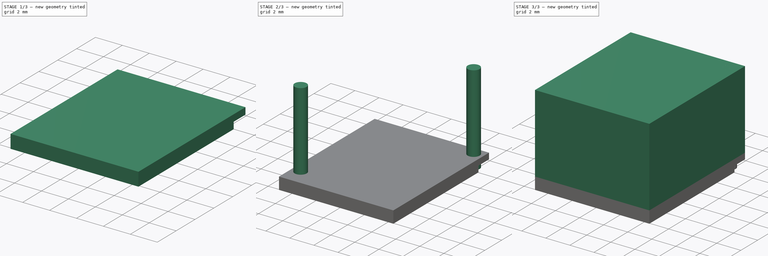
[diagram: build sequence overview — one tinted view per stage of 3, left to right]
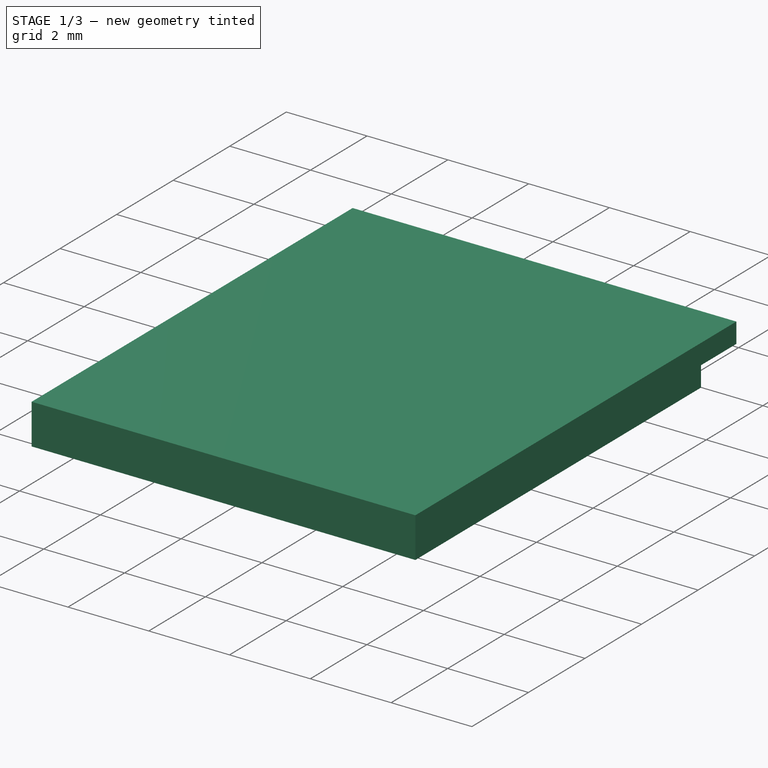
[diagram: stage 1 of 3 — iso view after this stage's code; geometry added in this stage tinted green]
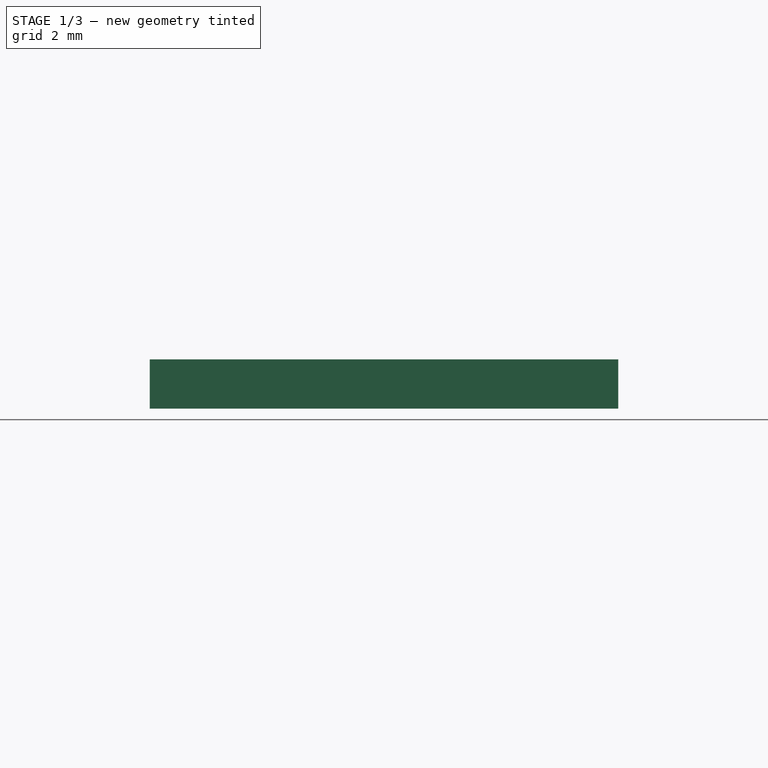
[diagram: stage 1 of 3 — front view after this stage's code; geometry added in this stage tinted green]
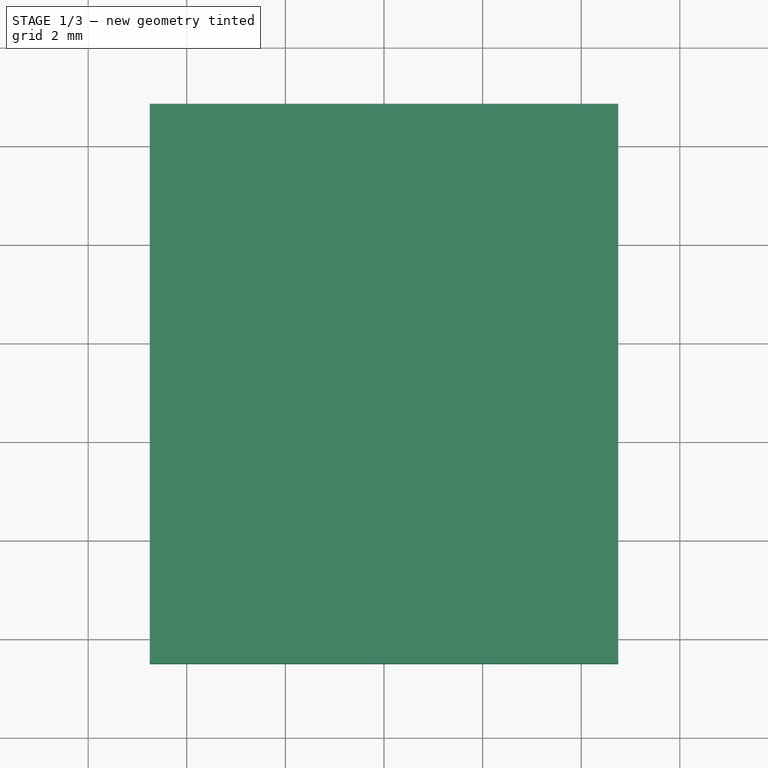
[diagram: stage 1 of 3 — top view after this stage's code; geometry added in this stage tinted green]
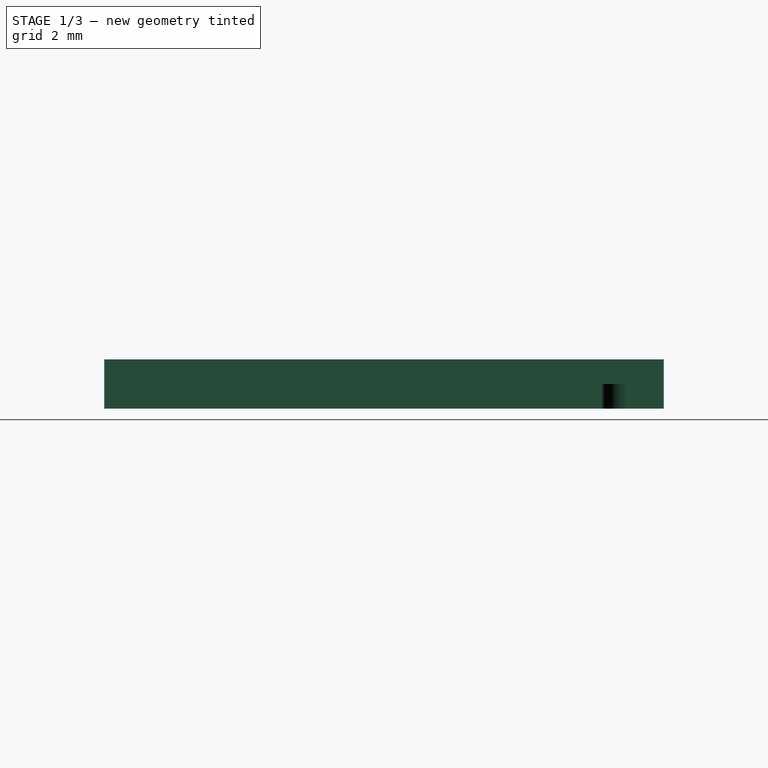
[diagram: stage 1 of 3 — right view after this stage's code; geometry added in this stage tinted green]
FCSTD DOCUMENT  (FreeCAD 0.19R16699 (Git))
Label: RD901F Datums
License: All rights reserved
LicenseURL: http://en.wikipedia.org/wiki/All_rights_reserved
objects: Sketcher::SketchObject×6, PartDesign::Plane×5, PartDesign::Pad×5, PartDesign::Body×5, PartDesign::Pocket×1, App::Part×1
note: 28 computed .brp shape members not serialized (recipe doc carries the construction recipe); baked Part::Feature solids carry a one-line shape summary decoded from their .brp

FEATURE [PartDesign::Plane] DatumPlane  label="BodyBottomDatumPlane"
  Length = 24
  MapMode = 5
  ResizeMode = 0
  Support = -> [XY_Plane001]
  Width = 24
FEATURE [Sketcher::SketchObject] Sketch  label="BodyBottomSketch"
  MapMode = 5
  Support = -> [DatumPlane]
  sketch-geometry (5):
    g0: LineSegment StartX=-4.75 StartY=4.85 StartZ=0 EndX=4.75 EndY=4.85 EndZ=0
    g1: LineSegment StartX=4.75 StartY=4.85 StartZ=0 EndX=4.75 EndY=-6.5 EndZ=0
    g2: LineSegment StartX=4.75 StartY=-6.5 StartZ=0 EndX=-4.75 EndY=-6.5 EndZ=0
    g3: LineSegment StartX=-4.75 StartY=-6.5 StartZ=0 EndX=-4.75 EndY=4.85 EndZ=0
    g4: LineSegment [constr] StartX=-8.64831 StartY=-5.45949 StartZ=0 EndX=-8.64831 EndY=-4.45949 EndZ=0
  constraints (13):
    c: Coincident(g0,g1)
    c: Coincident(g1,g2)
    c: Coincident(g2,g3)
    c: Coincident(g3,g0)
    c: Horizontal(g2)
    c: Vertical(g1)
    c: Vertical(g3)
    c: Symmetric(g0,g0,g-2)
    c: DistanceY(g-1,g0) = 4.85  'bodysizey1'
    c: DistanceY(g1,g-1) = 6.5  'bodysizey2'
    c: DistanceX(g0,g0) = 9.5  'bodysizex'
    c: Vertical(g4)
    c: DistanceY(g4,g4) = 1  'bodysizez1'
FEATURE [PartDesign::Pad] Pad  label="BodyBottomPad"
  Length = 1
  Length2 = 100
  Profile = -> Sketch
  Type = 0
  expr: Length = BodyBottomSketch.Constraints.bodysizez1
FEATURE [PartDesign::Body] Body004  label="Rivet2"
  Group = -> [DatumPlane004,Sketch004,Pad004]
  Origin = -> Origin005
  Tip = -> Pad004
FEATURE [Sketcher::SketchObject] Sketch005  label="Rivet1PocketSketch"
  MapMode = 5
  Support = -> [DatumPlane]
  expr: Constraints.y = 2 * Rivet1Sketch.Constraints.rivetradius + Rivet1PocketSketch.Constraints.rivettoedgey
  expr: Constraints[6] = BodyBottomSketch.Constraints.bodysizex / 2
  expr: Constraints[11] = 2 * Rivet1Sketch.Constraints.rivetradius + Rivet1PocketSketch.Constraints.rivettoedgex
  expr: Constraints[7] = BodyBottomSketch.Constraints.bodysizey1
  sketch-geometry (7):
    g0: LineSegment StartX=4 StartY=3.6 StartZ=0 EndX=4.75 EndY=3.6 EndZ=0
    g1: LineSegment StartX=4.75 StartY=3.6 StartZ=0 EndX=4.75 EndY=4.85 EndZ=0
    g2: LineSegment StartX=4.75 StartY=4.85 StartZ=0 EndX=3.5 EndY=4.85 EndZ=0
    g3: LineSegment StartX=3.5 StartY=4.85 StartZ=0 EndX=3.5 EndY=4.1 EndZ=0
    g4: ArcOfCircle CenterX=4 CenterY=4.1 CenterZ=0 NormalX=0 NormalY=0 NormalZ=1 AngleXU=0 Radius=0.5 StartAngle=3.14159 EndAngle=4.71239
    g5: LineSegment [constr] StartX=12.5082 StartY=6.55644 StartZ=0 EndX=12.7582 EndY=6.55644 EndZ=0
    g6: LineSegment [constr] StartX=12.3584 StartY=4.54892 StartZ=0 EndX=12.3584 EndY=4.29892 EndZ=0
  constraints (18):
    c: Coincident(g1,g2)
    c: Coincident(g2,g3)
    c: Horizontal(g0)
    c: Horizontal(g2)
    c: Vertical(g1)
    c: Vertical(g3)
    c: DistanceX(g-1,g1) = 4.75
    c: DistanceY(g-1,g1) = 4.85
    c: Tangent(g0,g4) = -1.5708
    c: Tangent(g3,g4) = -1.5708
    c: DistanceY(g0,g4) = 0.5
    c: DistanceX(g2,g1) = 1.25
    c: DistanceY(g0,g1) = 1.25  'y'
    c: Coincident(g0,g1)
    c: Horizontal(g5)
    c: Vertical(g6)
    c: DistanceY(g6,g6) = 0.25  'rivettoedgey'
    c: DistanceX(g5,g5) = 0.25  'rivettoedgex'
FEATURE [PartDesign::Pocket] Pocket  label="Rivet1Pocket"
  BaseFeature = -> Pad
  Length = 0.5
  Length2 = 100
  Profile = -> Sketch005
  Reversed = true
  Type = 0
FEATURE [PartDesign::Body] Body  label="BodyBottom"
  Group = -> [DatumPlane,Sketch,Pad,Sketch005,Pocket]
  Origin = -> Origin001
  Tip = -> Pocket
FEATURE [App::Part] Part  label="RD901F-20"
  Group = -> [Body,Body001,Body002,Body003,Body004]
  Origin = -> Origin
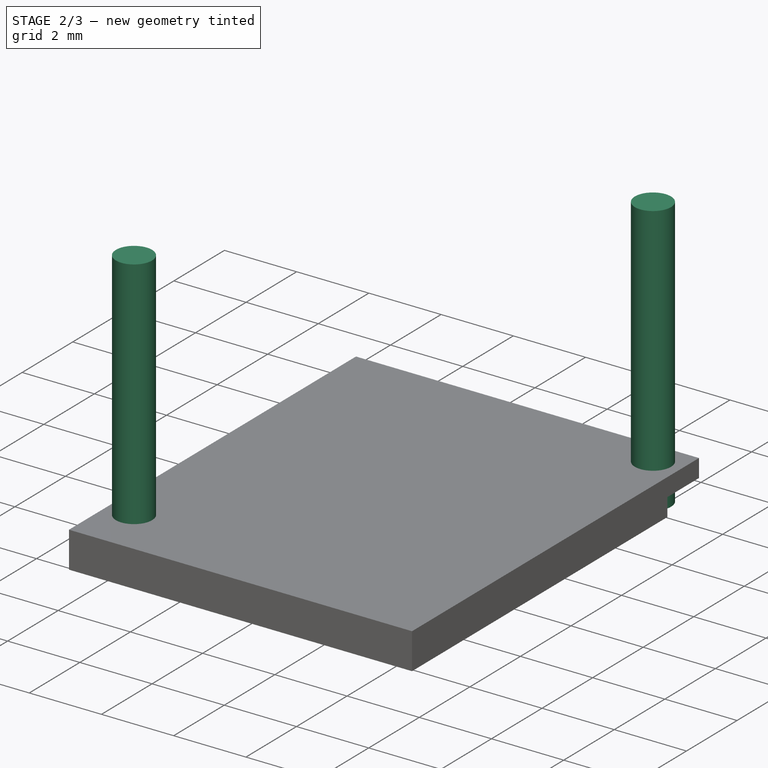
[diagram: stage 2 of 3 — iso view after this stage's code; geometry added in this stage tinted green]
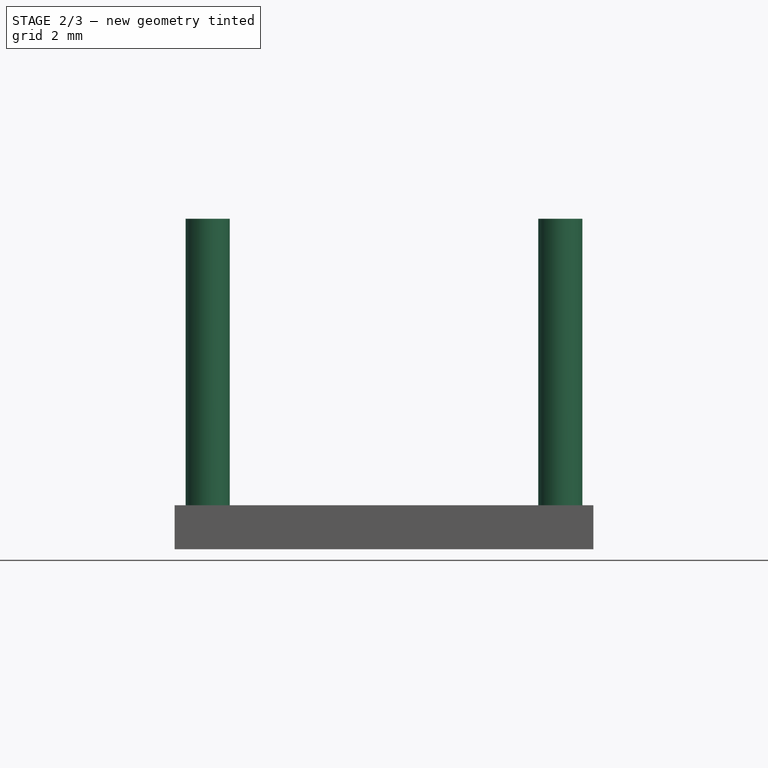
[diagram: stage 2 of 3 — front view after this stage's code; geometry added in this stage tinted green]
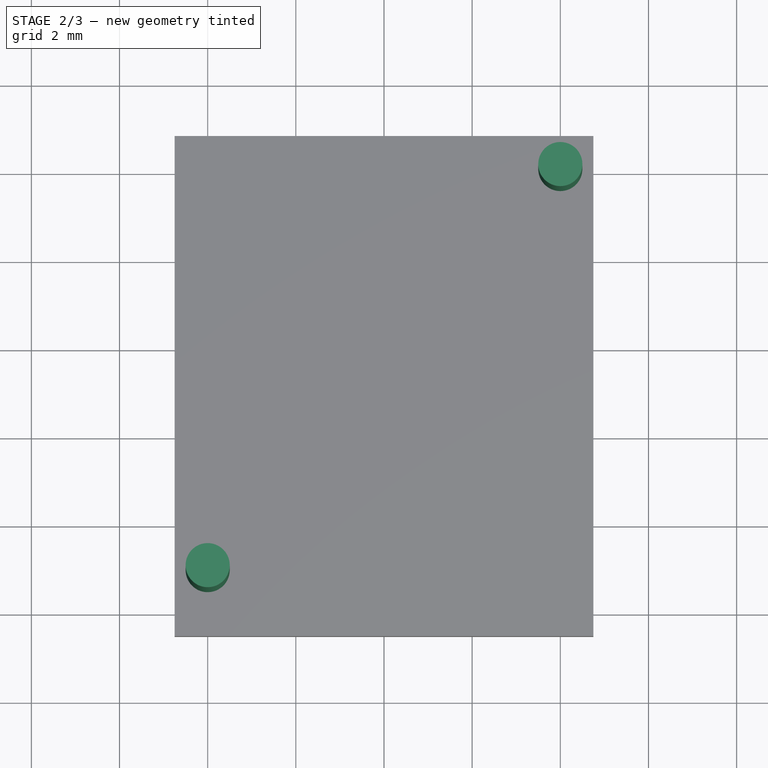
[diagram: stage 2 of 3 — top view after this stage's code; geometry added in this stage tinted green]
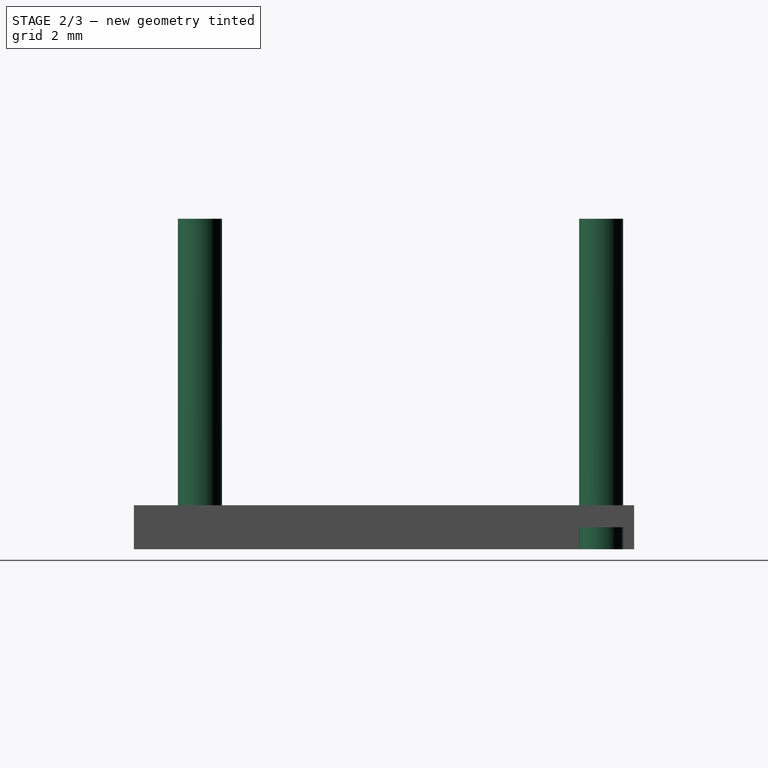
[diagram: stage 2 of 3 — right view after this stage's code; geometry added in this stage tinted green]
FEATURE [PartDesign::Body] Body002  label="BodyTop"
  Group = -> [DatumPlane002,Sketch002,Pad002]
  Origin = -> Origin003
  Tip = -> Pad002
FEATURE [PartDesign::Plane] DatumPlane003  label="Rivet1DatumPlane"
  Length = 24
  MapMode = 5
  ResizeMode = 0
  Support = -> [XY_Plane004]
  Width = 24
FEATURE [Sketcher::SketchObject] Sketch003  label="Rivet1Sketch"
  MapMode = 5
  Support = -> [DatumPlane003]
  expr: Constraints[2] = BodyBottomSketch.Constraints.bodysizey1 - Rivet1Sketch.Constraints.rivetradius - Rivet1Sketch.Constraints.rivettoedgey
  expr: Constraints[1] = BodyBottomSketch.Constraints.bodysizex / 2 - Rivet1Sketch.Constraints.rivetradius - Rivet1Sketch.Constraints.rivettoedgex
  sketch-geometry (4):
    g0: Circle CenterX=4 CenterY=4.1 CenterZ=0 NormalX=0 NormalY=0 NormalZ=1 AngleXU=0 Radius=0.5
    g1: LineSegment [constr] StartX=-10.6663 StartY=-2.3033 StartZ=0 EndX=-10.6663 EndY=-9.8033 EndZ=0
    g2: LineSegment [constr] StartX=-12.8921 StartY=3.00582 StartZ=0 EndX=-12.6421 EndY=3.00582 EndZ=0
    g3: LineSegment [constr] StartX=-14.8768 StartY=1.7535 StartZ=0 EndX=-14.8768 EndY=1.5035 EndZ=0
  constraints (9):
    c: Radius(g0) = 0.5  'rivetradius'
    c: DistanceX(g-1,g0) = 4
    c: DistanceY(g-1,g0) = 4.1
    c: Vertical(g1)
    c: DistanceY(g1,g1) = 7.5  'rivetlength'
    c: Horizontal(g2)
    c: Vertical(g3)
    c: DistanceX(g2,g2) = 0.25  'rivettoedgex'
    c: DistanceY(g3,g3) = 0.25  'rivettoedgey'
FEATURE [PartDesign::Pad] Pad003  label="Rivet1Pad"
  Length = 7.5
  Length2 = 100
  Profile = -> Sketch003
  Type = 0
  expr: Length = Rivet1Sketch.Constraints.rivetlength
FEATURE [PartDesign::Body] Body003  label="Rivet1"
  Group = -> [DatumPlane003,Sketch003,Pad003]
  Origin = -> Origin004
  Tip = -> Pad003
FEATURE [PartDesign::Plane] DatumPlane004  label="Rivet2DatumPlane"
  Length = 24
  MapMode = 5
  ResizeMode = 0
  Support = -> [XY_Plane005]
  Width = 24
FEATURE [Sketcher::SketchObject] Sketch004  label="Rivet2Sketch"
  MapMode = 5
  Support = -> [DatumPlane004]
  expr: Constraints[0] = Rivet1Sketch.Constraints.rivetradius
  sketch-geometry (1):
    g0: Circle CenterX=-4 CenterY=-5 CenterZ=0 NormalX=0 NormalY=0 NormalZ=1 AngleXU=0 Radius=0.5
  constraints (3):
    c: Radius(g0) = 0.5
    c: DistanceY(g0,g-1) = 5  'y'
    c: DistanceX(g0,g-1) = 4  'x'
FEATURE [PartDesign::Pad] Pad004  label="Rivet2Pad"
  Length = 7.5
  Length2 = 100
  Profile = -> Sketch004
  Type = 0
  expr: Length = Rivet1Sketch.Constraints.rivetlength
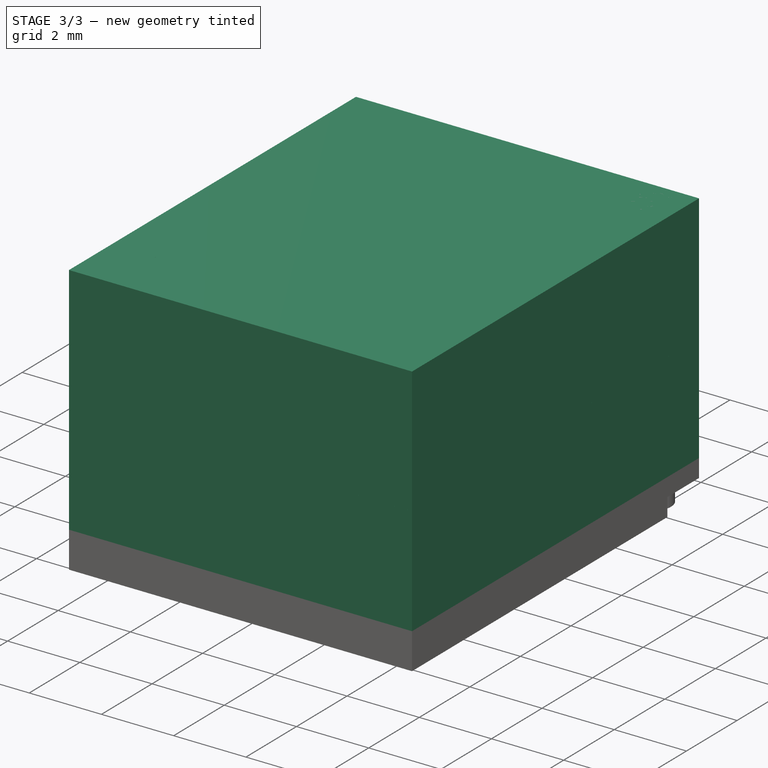
[diagram: stage 3 of 3 — iso view after this stage's code; geometry added in this stage tinted green]
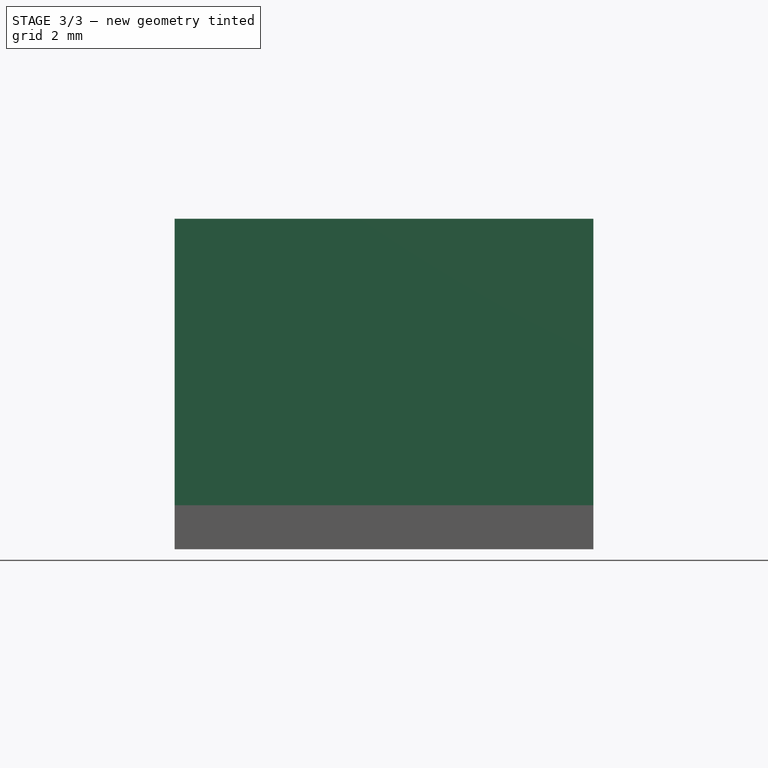
[diagram: stage 3 of 3 — front view after this stage's code; geometry added in this stage tinted green]
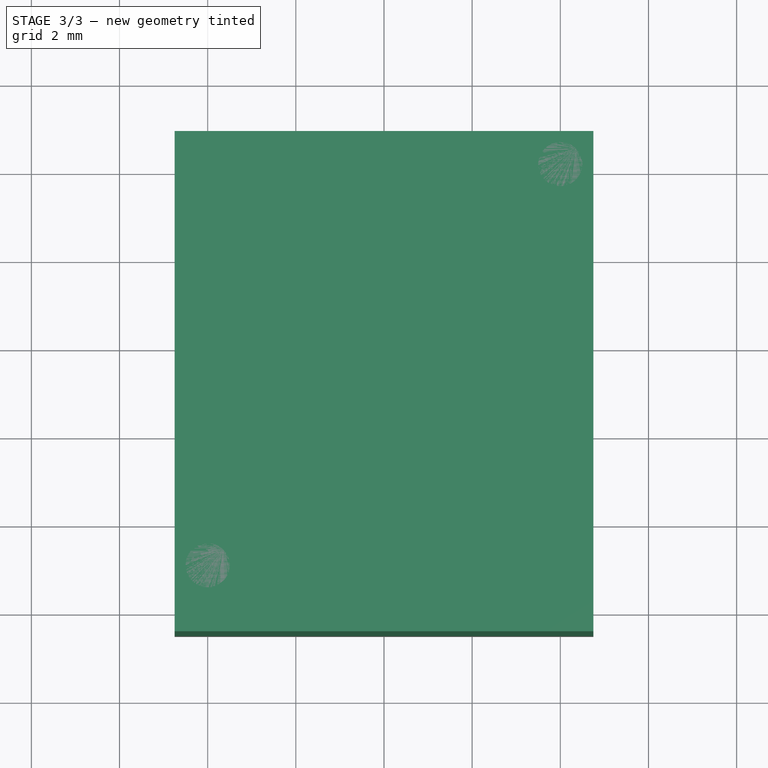
[diagram: stage 3 of 3 — top view after this stage's code; geometry added in this stage tinted green]
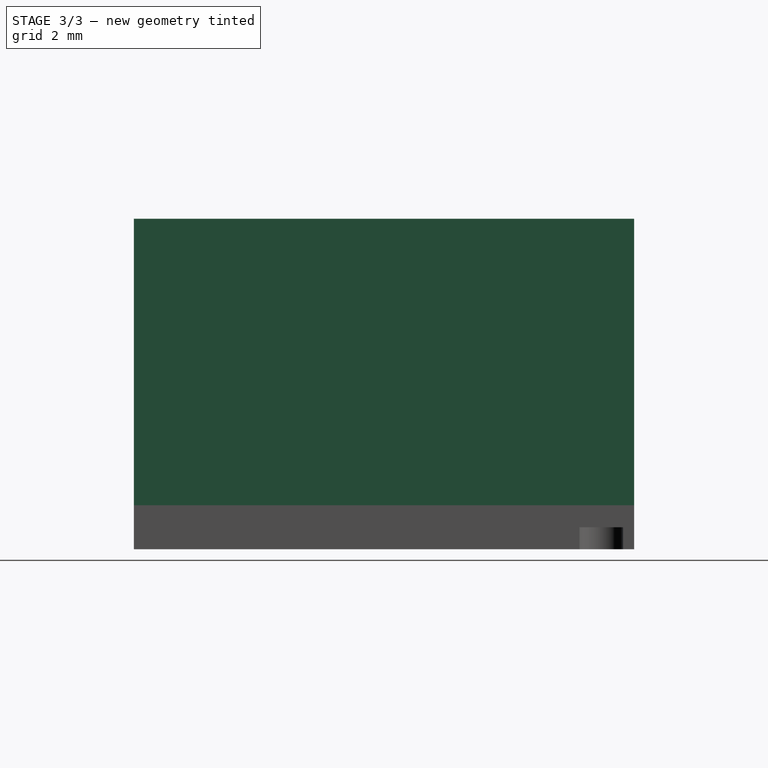
[diagram: stage 3 of 3 — right view after this stage's code; geometry added in this stage tinted green]
FEATURE [PartDesign::Plane] DatumPlane001  label="BodyMiddleDatumPlane"
  AttachmentOffset = pos=(0,0,1) rot=(0,0,1;0rad)
  Length = 24
  MapMode = 5
  Placement = pos=(0,0,1) rot=(0,0,1;0rad)
  ResizeMode = 0
  Support = -> [XY_Plane002]
  Width = 24
  expr: AttachmentOffset.Base.z = BodyBottomSketch.Constraints.bodysizez1
FEATURE [Sketcher::SketchObject] Sketch001  label="BodyMiddleSketch"
  MapMode = 5
  Placement = pos=(0,0,1) rot=(0,0,1;0rad)
  Support = -> [DatumPlane001]
  expr: Constraints[10] = BodyBottomSketch.Constraints.bodysizey2
  expr: Constraints[9] = BodyBottomSketch.Constraints.bodysizey1
  expr: Constraints[8] = BodyBottomSketch.Constraints.bodysizex
  sketch-geometry (5):
    g0: LineSegment StartX=-4.75 StartY=4.85 StartZ=0 EndX=4.75 EndY=4.85 EndZ=0
    g1: LineSegment StartX=4.75 StartY=4.85 StartZ=0 EndX=4.75 EndY=-6.5 EndZ=0
    g2: LineSegment StartX=4.75 StartY=-6.5 StartZ=0 EndX=-4.75 EndY=-6.5 EndZ=0
    g3: LineSegment StartX=-4.75 StartY=-6.5 StartZ=0 EndX=-4.75 EndY=4.85 EndZ=0
    g4: LineSegment [constr] StartX=-13.2114 StartY=-6.32925 StartZ=0 EndX=-13.2114 EndY=-3.32925 EndZ=0
  constraints (13):
    c: Coincident(g0,g1)
    c: Coincident(g1,g2)
    c: Coincident(g2,g3)
    c: Coincident(g3,g0)
    c: Horizontal(g2)
    c: Vertical(g1)
    c: Vertical(g3)
    c: Symmetric(g0,g0,g-2)
    c: DistanceX(g0,g0) = 9.5
    c: DistanceY(g-1,g0) = 4.85
    c: DistanceY(g1,g-1) = 6.5
    c: Vertical(g4)
    c: DistanceY(g4,g4) = 3  'bodysizez2'
FEATURE [PartDesign::Pad] Pad001  label="BodyMiddlePad"
  Length = 3
  Length2 = 100
  Placement = pos=(0,0,1) rot=(0,0,1;0rad)
  Profile = -> Sketch001
  Type = 0
  expr: Length = BodyMiddleSketch.Constraints.bodysizez2
FEATURE [PartDesign::Body] Body001  label="BodyMiddle"
  Group = -> [DatumPlane001,Sketch001,Pad001]
  Origin = -> Origin002
  Tip = -> Pad001
FEATURE [PartDesign::Plane] DatumPlane002
  AttachmentOffset = pos=(0,0,4) rot=(0,0,1;0rad)
  Length = 24
  MapMode = 5
  Placement = pos=(0,0,4) rot=(0,0,1;0rad)
  ResizeMode = 0
  Support = -> [XY_Plane003]
  Width = 24
  expr: AttachmentOffset.Base.z = BodyBottomSketch.Constraints.bodysizez1 + BodyMiddleSketch.Constraints.bodysizez2
FEATURE [Sketcher::SketchObject] Sketch002  label="BodyTopSketch"
  MapMode = 5
  Placement = pos=(0,0,4) rot=(0,0,1;0rad)
  Support = -> [DatumPlane002]
  expr: Constraints.bodysizez3 = 7.5mm - BodyBottomSketch.Constraints.bodysizez1 - BodyMiddleSketch.Constraints.bodysizez2
  expr: Constraints[10] = BodyBottomSketch.Constraints.bodysizey2
  expr: Constraints[9] = BodyBottomSketch.Constraints.bodysizey1
  expr: Constraints[8] = BodyBottomSketch.Constraints.bodysizex
  sketch-geometry (5):
    g0: LineSegment StartX=-4.75 StartY=4.85 StartZ=0 EndX=4.75 EndY=4.85 EndZ=0
    g1: LineSegment StartX=4.75 StartY=4.85 StartZ=0 EndX=4.75 EndY=-6.5 EndZ=0
    g2: LineSegment StartX=4.75 StartY=-6.5 StartZ=0 EndX=-4.75 EndY=-6.5 EndZ=0
    g3: LineSegment StartX=-4.75 StartY=-6.5 StartZ=0 EndX=-4.75 EndY=4.85 EndZ=0
    g4: LineSegment [constr] StartX=-20.0918 StartY=-9.04508 StartZ=0 EndX=-20.0918 EndY=-5.54508 EndZ=0
  constraints (13):
    c: Coincident(g0,g1)
    c: Coincident(g1,g2)
    c: Coincident(g2,g3)
    c: Coincident(g3,g0)
    c: Horizontal(g2)
    c: Vertical(g1)
    c: Vertical(g3)
    c: Symmetric(g0,g0,g-2)
    c: DistanceX(g0,g0) = 9.5
    c: DistanceY(g-1,g0) = 4.85
    c: DistanceY(g1,g-1) = 6.5
    c: Vertical(g4)
    c: DistanceY(g4,g4) = 3.5  'bodysizez3'
FEATURE [PartDesign::Pad] Pad002  label="BodyTopPad"
  Length = 3.5
  Length2 = 100
  Placement = pos=(0,0,4) rot=(0,0,1;0rad)
  Profile = -> Sketch002
  Type = 0
  expr: Length = BodyTopSketch.Constraints.bodysizez3
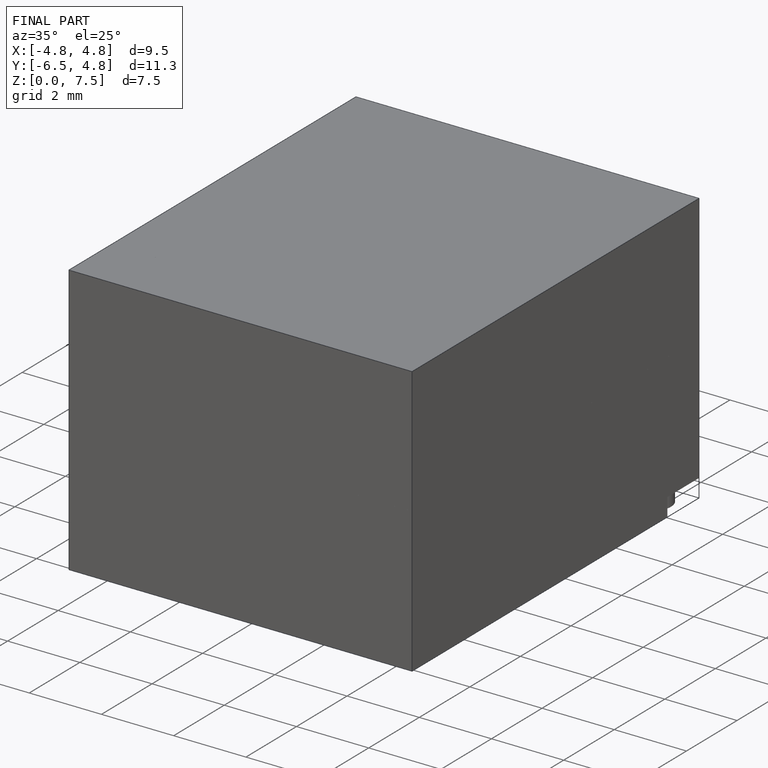
[diagram: finished part — iso view with bounding-box wireframe]
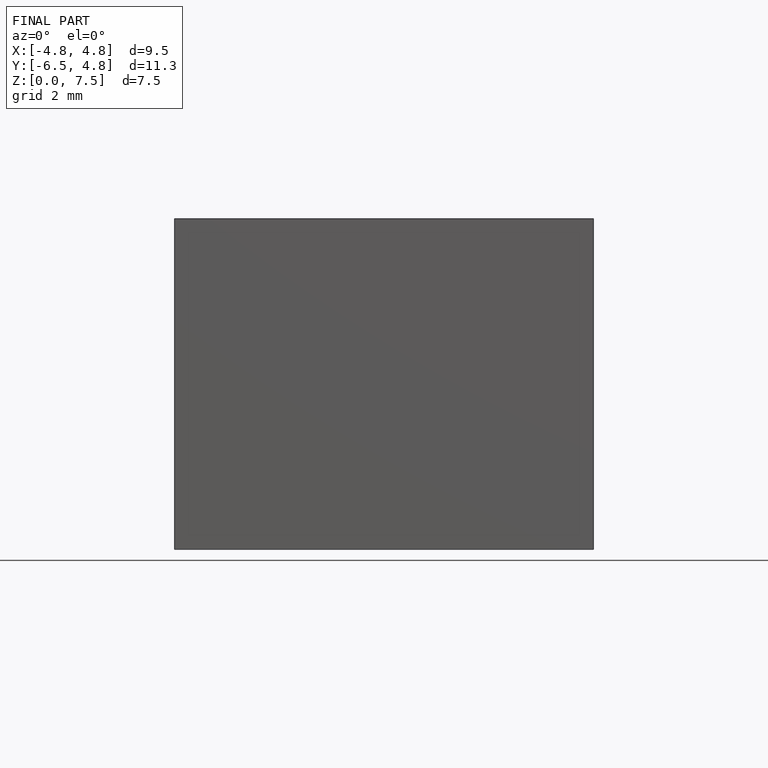
[diagram: finished part — front view with bounding-box wireframe]
